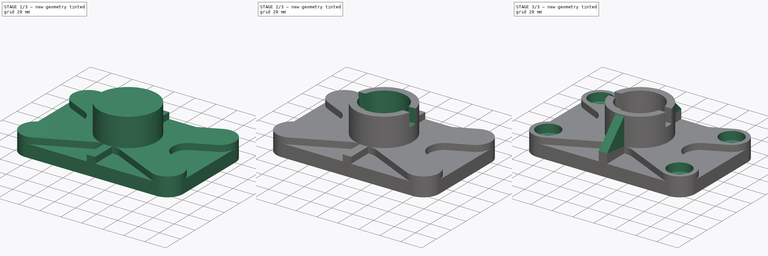
[diagram: build sequence overview — one tinted view per stage of 3, left to right]
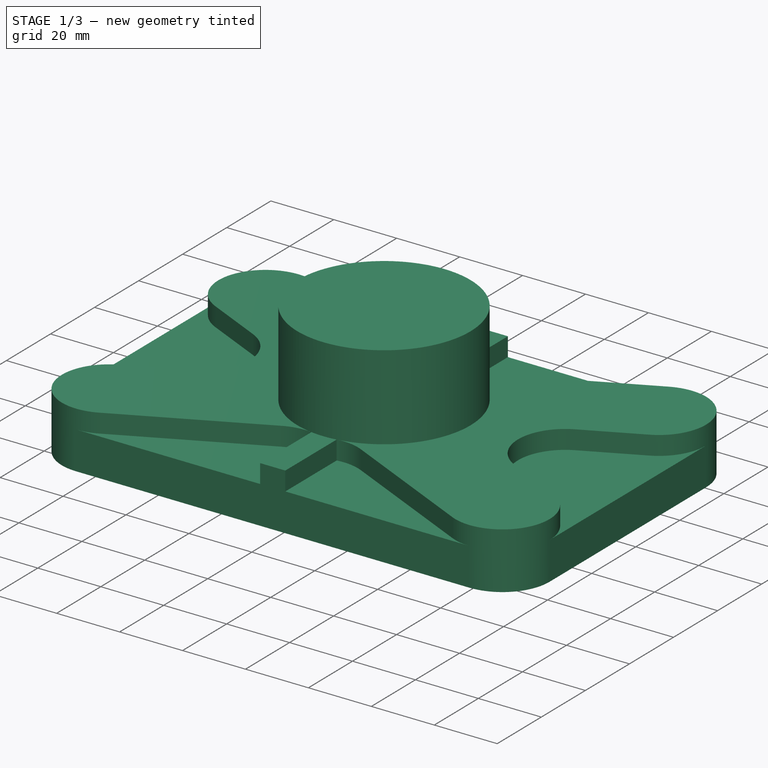
[diagram: stage 1 of 3 — iso view after this stage's code; geometry added in this stage tinted green]
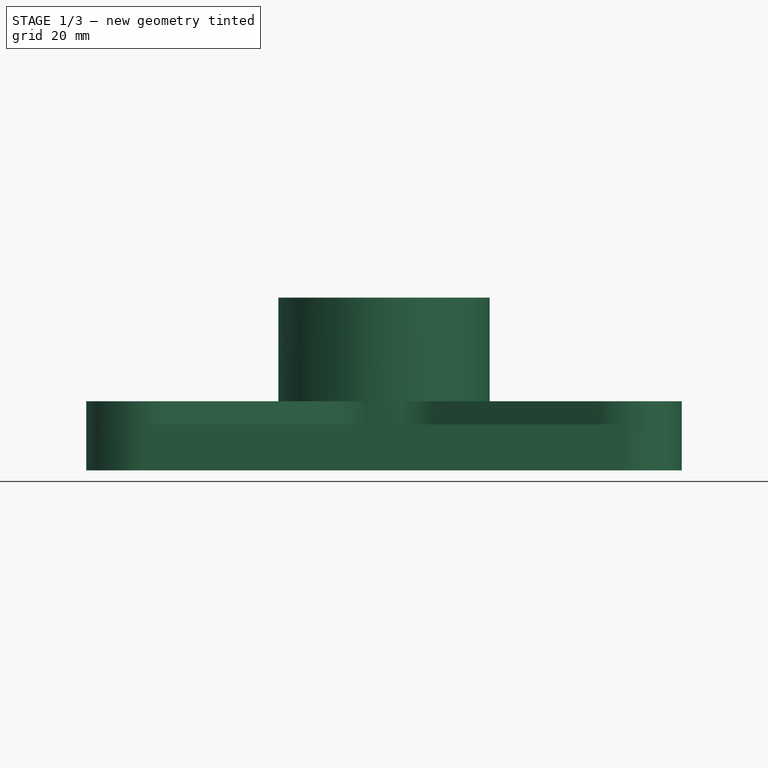
[diagram: stage 1 of 3 — front view after this stage's code; geometry added in this stage tinted green]
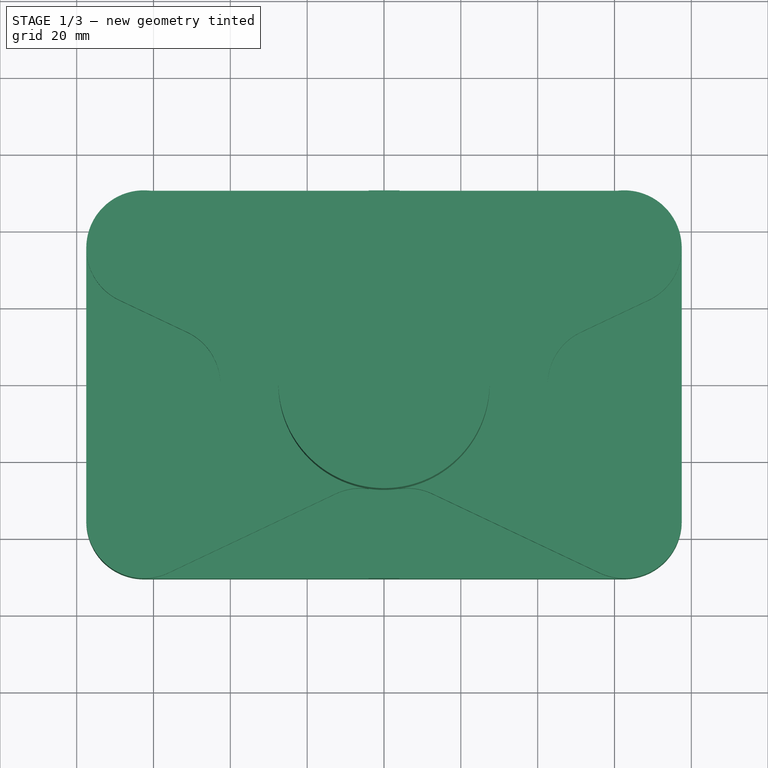
[diagram: stage 1 of 3 — top view after this stage's code; geometry added in this stage tinted green]
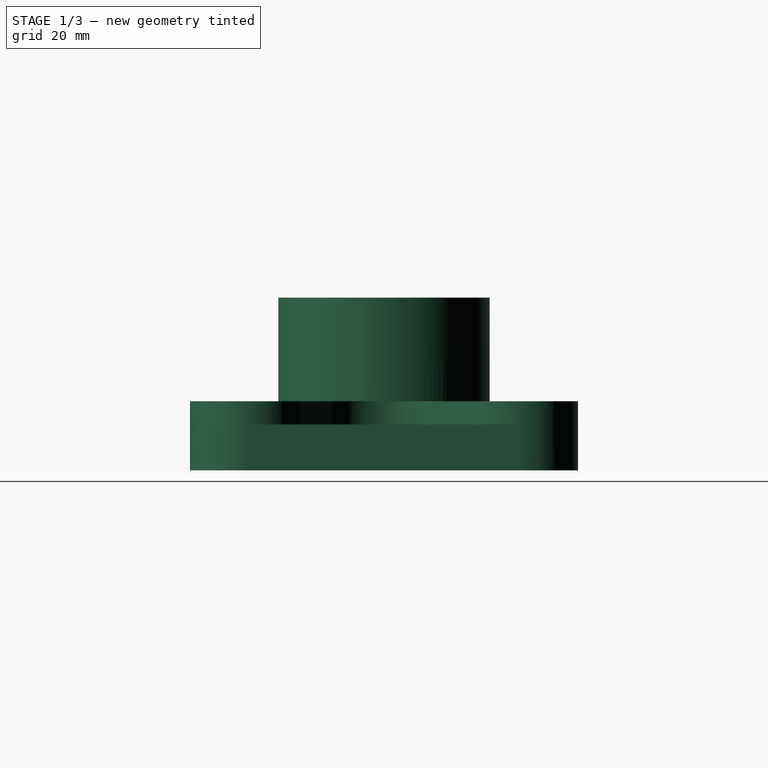
[diagram: stage 1 of 3 — right view after this stage's code; geometry added in this stage tinted green]
FCSTD DOCUMENT  (FreeCAD 1.1R42180 (Git))
Label: 24WC-02-Foot_Pad
License: Creative Commons Attribution-NonCommercial-ShareAlike 4.0
LicenseURL: https://creativecommons.org/licenses/by-nc-sa/4.0/
objects: Sketcher::SketchObject×5, PartDesign::Pad×4, PartDesign::Hole×2, App::Point×1, PartDesign::Pocket×1, App::TextDocument×1, PartDesign::Mirrored×1, PartDesign::Body×1
note: 34 computed .brp shape members not serialized (recipe doc carries the construction recipe); baked Part::Feature solids carry a one-line shape summary decoded from their .brp

FEATURE [App::Point] Origin001  label="Origine"
  Role = Origin
FEATURE [Sketcher::SketchObject] Sketch
  ArcFitTolerance = 1e-06
  AttachmentSupport = -> [Origin]
  ExternalTypes = [0]
  FullyConstrained = true
  MakeInternals = false
  MapMode = 5
  sketch-geometry (13):
    g0: LineSegment StartX=-62.5 StartY=-50.5 StartZ=0 EndX=62.5 EndY=-50.5 EndZ=0
    g1: LineSegment StartX=77.5 StartY=-35.5 StartZ=0 EndX=77.5 EndY=35.5 EndZ=0
    g2: LineSegment StartX=62.5 StartY=50.5 StartZ=0 EndX=-62.5 EndY=50.5 EndZ=0
    g3: LineSegment StartX=-77.5 StartY=35.5 StartZ=0 EndX=-77.5 EndY=-35.5 EndZ=0
    g4: GeomPoint [constr] X=0 Y=0 Z=0
    g5: ArcOfCircle CenterX=-62.5 CenterY=35.5 CenterZ=0 NormalX=0 NormalY=0 NormalZ=1 AngleXU=0 Radius=15 StartAngle=1.5708 EndAngle=3.14159
    g6: GeomPoint [constr] X=-77.5 Y=50.5 Z=0
    g7: ArcOfCircle CenterX=-62.5 CenterY=-35.5 CenterZ=0 NormalX=0 NormalY=0 NormalZ=1 AngleXU=0 Radius=15 StartAngle=3.14159 EndAngle=4.71239
    g8: GeomPoint [constr] X=-77.5 Y=-50.5 Z=0
    g9: ArcOfCircle CenterX=62.5 CenterY=-35.5 CenterZ=0 NormalX=0 NormalY=0 NormalZ=1 AngleXU=0 Radius=15 StartAngle=4.71239 EndAngle=6.28319
    g10: GeomPoint [constr] X=77.5 Y=-50.5 Z=0
    g11: ArcOfCircle CenterX=62.5 CenterY=35.5 CenterZ=0 NormalX=0 NormalY=0 NormalZ=1 AngleXU=0 Radius=15 StartAngle=-4.97e-14 EndAngle=1.5708
    g12: GeomPoint [constr] X=77.5 Y=50.5 Z=0
  constraints (28):
    c: Horizontal(g0)
    c: Horizontal(g2)
    c: Vertical(g1)
    c: Vertical(g3)
    c: Symmetric(g12,g8,g4)
    c: Distance(g10,g8) = 155
    c: Distance(g8,g6) = 101
    c: Coincident(g4,g-1)
    c: PointOnObject(g6,g2)
    c: PointOnObject(g6,g3)
    c: Tangent(g2,g5) = -1.5708
    c: Tangent(g3,g5) = -1.5708
    c: PointOnObject(g8,g3)
    c: PointOnObject(g8,g0)
    c: Tangent(g3,g7) = -1.5708
    c: Tangent(g0,g7) = -1.5708
    c: PointOnObject(g10,g0)
    c: PointOnObject(g10,g1)
    c: Tangent(g0,g9) = -1.5708
    c: Tangent(g1,g9) = -1.5708
    c: PointOnObject(g12,g1)
    c: PointOnObject(g12,g2)
    c: Tangent(g1,g11) = -1.5708
    c: Tangent(g2,g11) = -1.5708
    c: Radius(g11) = 15
    c: Equal(g11,g5)
    c: Equal(g7,g9)
    c: Equal(g9,g11)
FEATURE [PartDesign::Pad] Pad  label="Base plate"
  Direction = (0,0,1)
  Length = 12
  Length2 = 10
  Profile = -> Sketch
  ReferenceAxis = -> Sketch [N_Axis]
  Refine = true
  Reversed = true
  Suppressed = false
  Type = 0
FEATURE [Sketcher::SketchObject] Sketch002
  ArcFitTolerance = 1e-06
  ExternalTypes = [0,0,0,0,0]
  FullyConstrained = true
  MakeInternals = false
  MapMode = 5
  sketch-geometry (28):
    g0: Circle [constr] CenterX=0 CenterY=0 CenterZ=0 NormalX=0 NormalY=0 NormalZ=1 AngleXU=0 Radius=27.5
    g1: LineSegment StartX=-68.9138 StartY=21.9404 StartZ=0 EndX=-51.1957 EndY=13.5596 EndZ=0
    g2: ArcOfCircle CenterX=-57.6094 CenterY=0 CenterZ=0 NormalX=0 NormalY=0 NormalZ=1 AngleXU=0 Radius=15 StartAngle=5.15406 EndAngle=7.41216
    g3: LineSegment StartX=-51.1976 StartY=-13.5606 StartZ=0 EndX=-68.9138 EndY=-21.9404 EndZ=0
    g4: ArcOfCircle CenterX=-62.5 CenterY=-35.5 CenterZ=0 NormalX=0 NormalY=0 NormalZ=1 AngleXU=0 Radius=15 StartAngle=2.01261 EndAngle=5.15421
    g5: LineSegment StartX=-56.0862 StartY=-49.0596 StartZ=0 EndX=-12.5956 EndY=-28.4884 EndZ=0
    g6: LineSegment StartX=12.5956 StartY=-28.4884 StartZ=0 EndX=56.0862 EndY=-49.0596 EndZ=0
    g7: ArcOfCircle CenterX=62.5 CenterY=-35.5 CenterZ=0 NormalX=0 NormalY=0 NormalZ=1 AngleXU=0 Radius=15 StartAngle=4.27057 EndAngle=7.41216
    g8: LineSegment StartX=68.9138 StartY=-21.9404 StartZ=0 EndX=51.1957 EndY=-13.5596 EndZ=0
    g9: ArcOfCircle CenterX=57.6094 CenterY=0 CenterZ=0 NormalX=0 NormalY=0 NormalZ=1 AngleXU=0 Radius=15 StartAngle=2.01243 EndAngle=4.27057
    g10: LineSegment StartX=51.1982 StartY=13.5608 StartZ=0 EndX=68.9138 EndY=21.9404 EndZ=0
    g11: ArcOfCircle CenterX=62.5 CenterY=35.5 CenterZ=0 NormalX=0 NormalY=0 NormalZ=1 AngleXU=0 Radius=15 StartAngle=5.15421 EndAngle=8.2958
    g12: LineSegment StartX=56.0862 StartY=49.0596 StartZ=0 EndX=12.5956 EndY=28.4884 EndZ=0
    g13: ArcOfCircle CenterX=6.18182 CenterY=42.048 CenterZ=0 NormalX=0 NormalY=0 NormalZ=1 AngleXU=0 Radius=15 StartAngle=4.56642 EndAngle=5.15421
    g14: ArcOfCircle CenterX=-62.5 CenterY=35.5 CenterZ=0 NormalX=0 NormalY=0 NormalZ=1 AngleXU=0 Radius=15 StartAngle=1.12898 EndAngle=4.27057
    g15: LineSegment StartX=-56.0862 StartY=49.0596 StartZ=0 EndX=-12.5956 EndY=28.4884 EndZ=0
    g16: ArcOfCircle CenterX=-6.18182 CenterY=42.048 CenterZ=0 NormalX=0 NormalY=0 NormalZ=1 AngleXU=0 Radius=15 StartAngle=4.27057 EndAngle=4.85836
    g17: ArcOfCircle CenterX=-6.18182 CenterY=-42.048 CenterZ=0 NormalX=0 NormalY=0 NormalZ=1 AngleXU=0 Radius=15 StartAngle=1.42482 EndAngle=2.01261
    g18: LineSegment [constr] StartX=-62.5 StartY=-35.5 StartZ=0 EndX=62.5 EndY=35.5 EndZ=0
    g19: ArcOfCircle CenterX=6.18182 CenterY=-42.048 CenterZ=0 NormalX=0 NormalY=0 NormalZ=1 AngleXU=0 Radius=15 StartAngle=1.12898 EndAngle=1.71677
    g20: LineSegment StartX=-4 StartY=50.5 StartZ=0 EndX=-4 EndY=27.2075 EndZ=0
    g21: LineSegment [constr] StartX=-4 StartY=27.2075 StartZ=0 EndX=4 EndY=27.2075 EndZ=0
    g22: LineSegment StartX=4 StartY=27.2075 StartZ=0 EndX=4 EndY=50.5 EndZ=0
    g23: LineSegment StartX=4 StartY=50.5 StartZ=0 EndX=-4 EndY=50.5 EndZ=0
    g24: LineSegment [constr] StartX=4 StartY=-27.2075 StartZ=0 EndX=-4 EndY=-27.2075 EndZ=0
    g25: LineSegment StartX=-4 StartY=-27.2075 StartZ=0 EndX=-4 EndY=-50.5 EndZ=0
    g26: LineSegment StartX=-4 StartY=-50.5 StartZ=0 EndX=4 EndY=-50.5 EndZ=0
    g27: LineSegment StartX=4 StartY=-50.5 StartZ=0 EndX=4 EndY=-27.2075 EndZ=0
  constraints (69):
    c: Diameter(g0) = 55
    c: Coincident(g0,g-1)
    c: Tangent(g3,g4) = -1.5708
    c: Tangent(g4,g5) = -1.5708
    c: Tangent(g6,g7) = -1.5708
    c: Tangent(g7,g8) = -1.5708
    c: Tangent(g10,g11) = -1.5708
    c: Tangent(g11,g12) = -1.5708
    c: Tangent(g1,g14) = -1.5708
    c: Tangent(g14,g15) = 1.5708
    c: Coincident(g-6,g11)
    c: Coincident(g7,g-5)
    c: Coincident(g4,g-4)
    c: Coincident(g14,g-3)
    c: PointOnObject(g-4,g4)
    c: PointOnObject(g-3,g14)
    c: PointOnObject(g-6,g11)
    c: PointOnObject(g-5,g7)
    c: Equal(g9,g2)
    c: Symmetric(g2,g9,g0)
    c: Parallel(g1,g15)
    c: Parallel(g3,g5)
    c: Parallel(g6,g8)
    c: Parallel(g10,g12)
    c: Equal(g13,g9)
    c: Horizontal(g9,g2)
    c: Coincident(g18,g4)
    c: Coincident(g18,g11)
    c: Coincident(g20,g21)
    c: Coincident(g21,g22)
    c: Coincident(g22,g23)
    c: Coincident(g23,g20)
    c: Vertical(g20)
    c: Vertical(g22)
    c: Horizontal(g21)
    c: Horizontal(g23)
    c: Coincident(g21,g13)
    c: Coincident(g24,g25)
    c: Coincident(g25,g26)
    c: Coincident(g26,g27)
    c: Coincident(g27,g24)
    c: Horizontal(g24)
    c: Vertical(g25)
    c: Vertical(g27)
    c: Coincident(g24,g19)
    c: Coincident(g17,g24)
    c: DistanceX(g24,g24) = 8
    c: PointOnObject(g25,g-7)
    c: Symmetric(g26,g25,g-2)
    c: Symmetric(g22,g26,g-1)
    c: Coincident(g16,g20)
    c: Symmetric(g17,g16,g-1)
    c: Tangent(g16,g0)
    c: Tangent(g19,g0)
    c: Tangent(g17,g0) = 1.5708
    c: Tangent(g13,g0)
    c: Distance(g11,g10) = 30
    c: Radius(g16) = 15
    c: Equal(g16,g13)
    c: Equal(g17,g19)
    c: Coincident(g2,g3)
    c: Coincident(g10,g9)
    c: Coincident(g12,g13)
    c: Tangent(g1,g2) = 1.5708
    c: Tangent(g15,g16) = -1.5708
    c: Tangent(g5,g17) = 1.5708
    c: Tangent(g19,g6) = 1.5708
    c: Tangent(g12,g13,g12) = 1.5708
    c: Tangent(g9,g8) = 1.5708
FEATURE [PartDesign::Pad] Pad001  label="Cross"
  BaseFeature = -> Pad
  Direction = (0,0,1)
  Length = 6
  Length2 = 10
  Profile = -> Sketch002
  ReferenceAxis = -> Sketch002 [N_Axis]
  Refine = true
  Suppressed = false
  Type = 0
FEATURE [Sketcher::SketchObject] Sketch003
  ArcFitTolerance = 1e-06
  AttachmentSupport = -> [Pad001]
  ExternalTypes = [0]
  FullyConstrained = true
  MakeInternals = false
  MapMode = 5
  Placement = pos=(0,0,-12) rot=(1,0,0;3.14159rad)
  sketch-geometry (1):
    g0: Circle CenterX=0 CenterY=0 CenterZ=0 NormalX=0 NormalY=0 NormalZ=1 AngleXU=0 Radius=27.5
  constraints (2):
    c: Coincident(g0,g-1)
    c: Diameter(g0) = 55
FEATURE [PartDesign::Pad] Pad002
  BaseFeature = -> Pad001
  Direction = (0,0,-1)
  Length = 45
  Length2 = 10
  Profile = -> Sketch003
  ReferenceAxis = -> Sketch003 [N_Axis]
  Refine = true
  Reversed = true
  Suppressed = false
  Type = 0
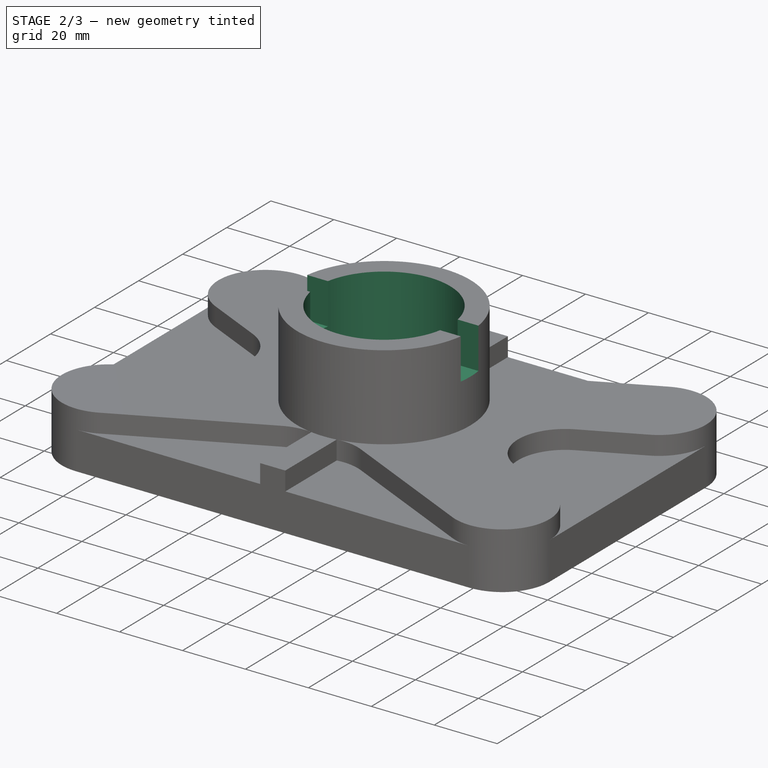
[diagram: stage 2 of 3 — iso view after this stage's code; geometry added in this stage tinted green]
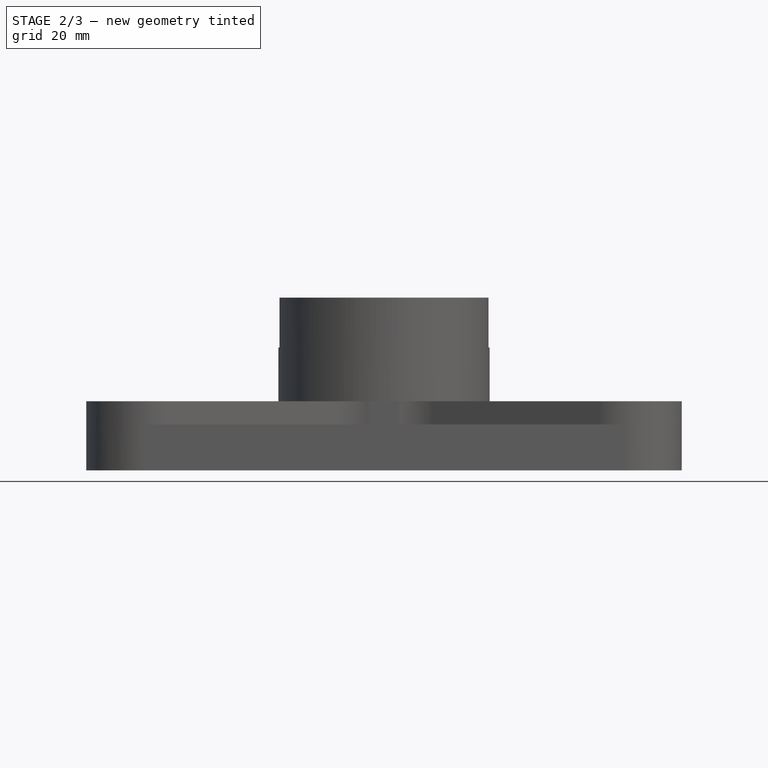
[diagram: stage 2 of 3 — front view after this stage's code; geometry added in this stage tinted green]
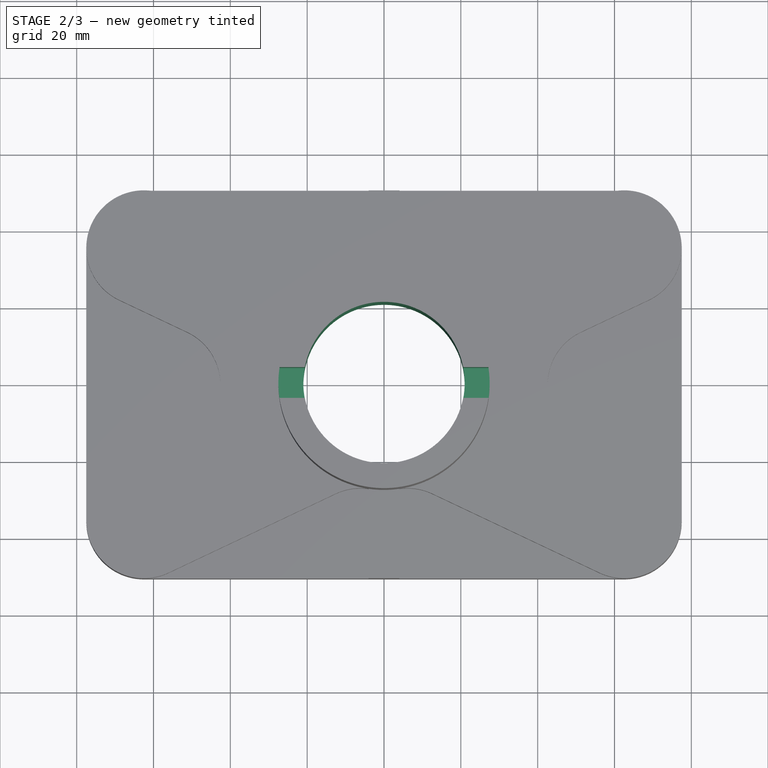
[diagram: stage 2 of 3 — top view after this stage's code; geometry added in this stage tinted green]
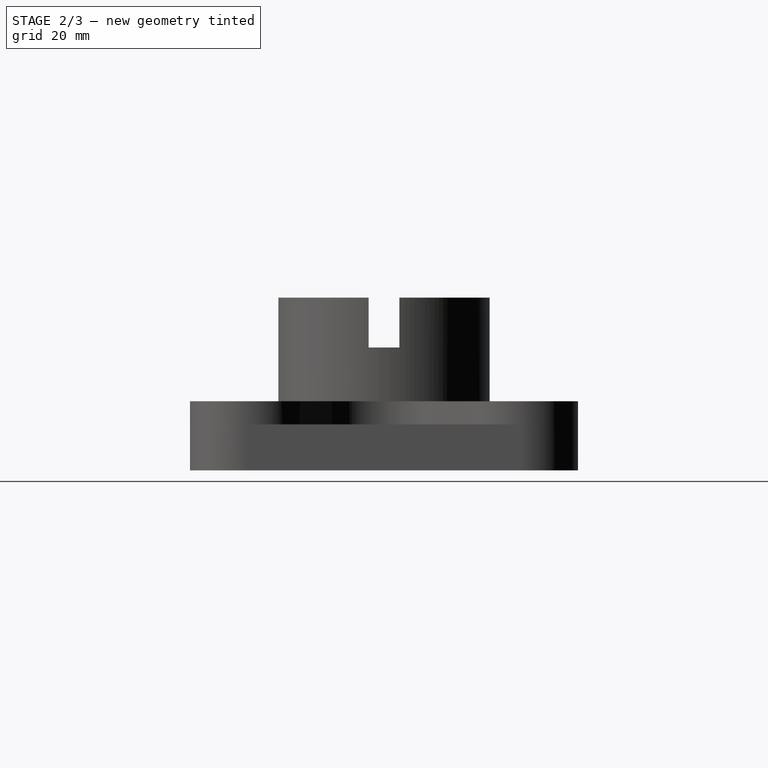
[diagram: stage 2 of 3 — right view after this stage's code; geometry added in this stage tinted green]
FEATURE [PartDesign::Hole] Hole
  BaseFeature = -> Pad002
  BaseProfileType = 7
  CustomThreadClearance = 0
  Depth = 384.602
  DepthType = 1
  Diameter = 42
  DrillForDepth = false
  DrillPoint = 1
  DrillPointAngle = 118
  HoleCutCountersinkAngle = 90
  HoleCutCustomValues = false
  HoleCutDepth = 0
  HoleCutDiameter = 0
  HoleCutType = 0
  ModelThread = false
  Profile = -> Pad002 [Face38]
  Refine = true
  Suppressed = false
  Tapered = false
  TaperedAngle = 90
  ThreadClass = 0
  ThreadDepth = 384.602
  ThreadDepthType = 0
  ThreadDiameter = 42
  ThreadDirection = 0
  ThreadFit = 0
  ThreadSize = 0
  ThreadType = 0
  Threaded = false
  UseCustomThreadClearance = false
FEATURE [Sketcher::SketchObject] Sketch004
  ArcFitTolerance = 1e-06
  AttachmentSupport = -> [Origin]
  ExternalGeometry = -> [Hole]
  ExternalTypes = [0]
  FullyConstrained = true
  MakeInternals = false
  MapMode = 5
  Placement = pos=(0,0,0) rot=(0.57735,0.57735,0.57735;2.0944rad)
  sketch-geometry (4):
    g0: LineSegment StartX=-4 StartY=33 StartZ=0 EndX=-4 EndY=20 EndZ=0
    g1: LineSegment StartX=-4 StartY=20 StartZ=0 EndX=4 EndY=20 EndZ=0
    g2: LineSegment StartX=4 StartY=20 StartZ=0 EndX=4 EndY=33 EndZ=0
    g3: LineSegment StartX=4 StartY=33 StartZ=0 EndX=-4 EndY=33 EndZ=0
  constraints (11):
    c: Coincident(g0,g1)
    c: Coincident(g1,g2)
    c: Coincident(g2,g3)
    c: Coincident(g3,g0)
    c: Vertical(g0)
    c: Vertical(g2)
    c: Horizontal(g3)
    c: Distance(g0,g2) = 8
    c: Distance(g1,g3) = 13
    c: PointOnObject(g0,g-3)
    c: Symmetric(g0,g1,g-2)
FEATURE [PartDesign::Pocket] Pocket001
  BaseFeature = -> Hole
  Direction = (-1,0,0)
  Length = 5
  Length2 = 5
  Midplane = true
  Profile = -> Sketch004
  ReferenceAxis = -> Sketch004 [N_Axis]
  Refine = true
  Suppressed = false
  Type = 1
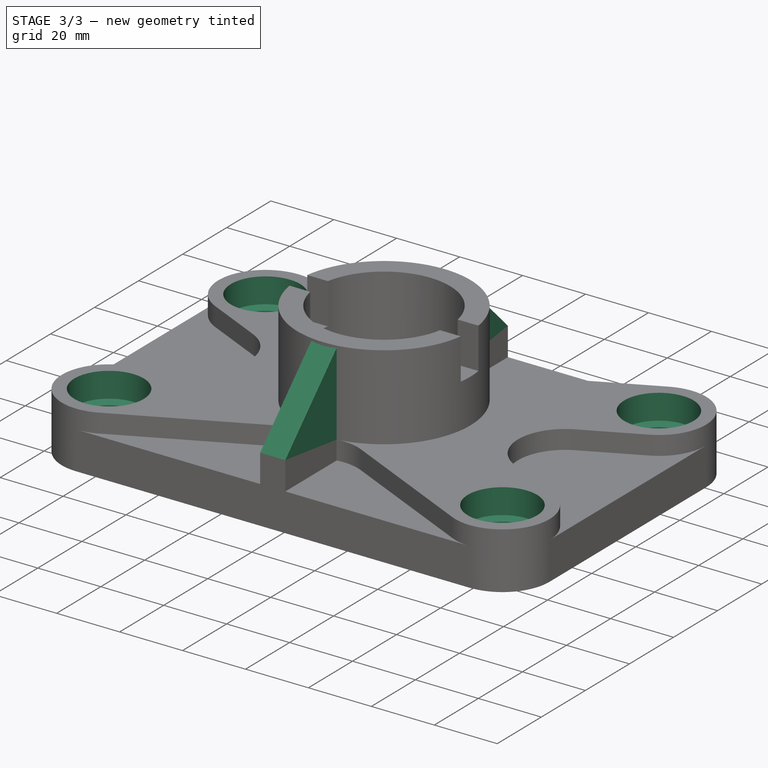
[diagram: stage 3 of 3 — iso view after this stage's code; geometry added in this stage tinted green]
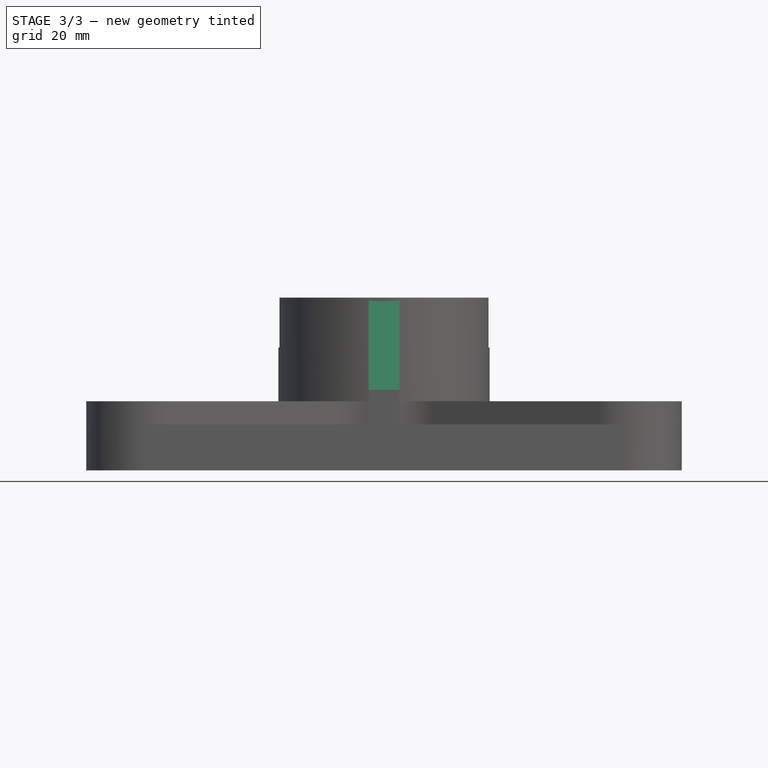
[diagram: stage 3 of 3 — front view after this stage's code; geometry added in this stage tinted green]
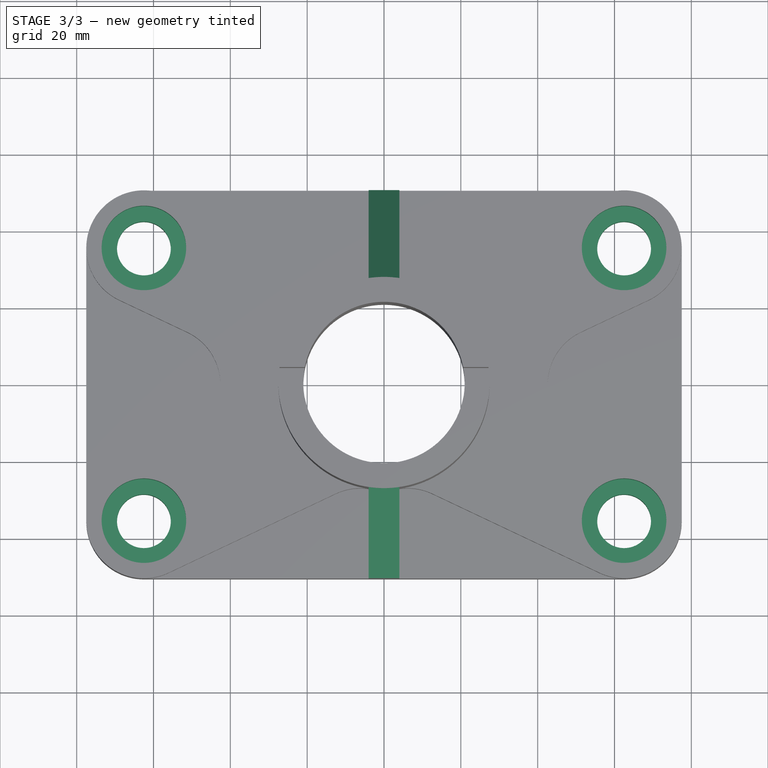
[diagram: stage 3 of 3 — top view after this stage's code; geometry added in this stage tinted green]
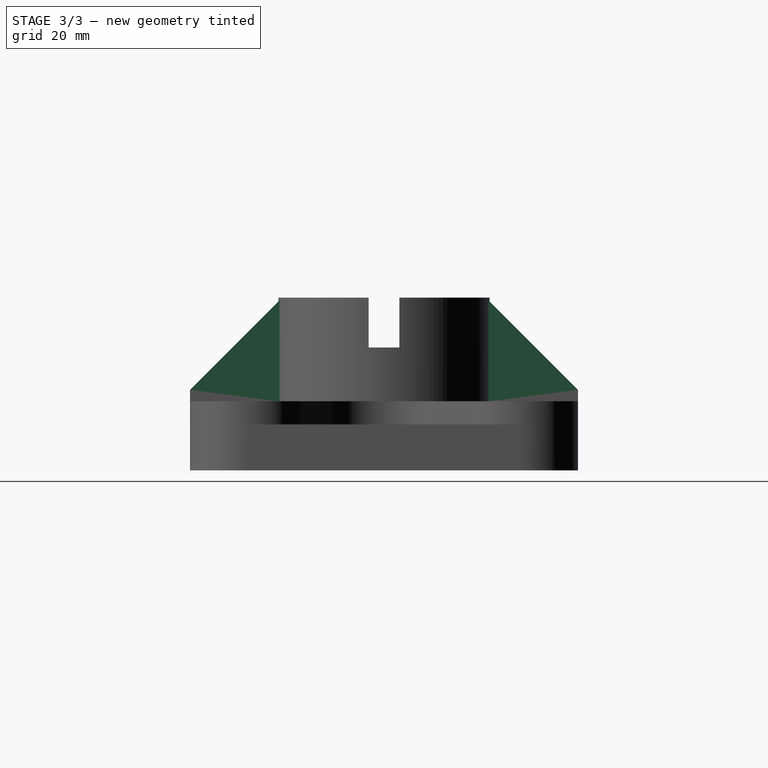
[diagram: stage 3 of 3 — right view after this stage's code; geometry added in this stage tinted green]
FEATURE [Sketcher::SketchObject] Sketch005
  ArcFitTolerance = 1e-06
  AttachmentSupport = -> [Pad001]
  ExternalGeometry = -> [Pocket001,Pad001]
  ExternalTypes = [0,0,0]
  FullyConstrained = true
  MakeInternals = false
  MapMode = 5
  Placement = pos=(4,0,0) rot=(0.57735,0.57735,0.57735;2.0944rad)
  sketch-geometry (3):
    g0: LineSegment StartX=27.2075 StartY=32.2925 StartZ=0 EndX=50.5 EndY=9 EndZ=0
    g1: LineSegment StartX=50.5 StartY=9 StartZ=0 EndX=50.5 EndY=6 EndZ=0
    g2: LineSegment StartX=27.2075 StartY=6 StartZ=0 EndX=27.2075 EndY=32.2925 EndZ=0
  constraints (8):
    c: Coincident(g0,g1)
    c: Vertical(g1)
    c: Coincident(g2,g0)
    c: Vertical(g2)
    c: DistanceY(g-3,g0) = 21
    c: Coincident(g2,g-5)
    c: Coincident(g1,g-5)
    c: Angle(g0,g-1) = 0.785398
FEATURE [App::TextDocument] Text_document  label="README"
  Text = https://www.youtube.com/watch?v=IyYxFhvBxEg\n\n7800 kg/m3\n\n1824,2g\n\nbut expected 1817, I don't see the error!
FEATURE [PartDesign::Pad] Pad003
  BaseFeature = -> Pocket001
  Direction = (1,0,0)
  Length = 8
  Length2 = 10
  Profile = -> Sketch005
  ReferenceAxis = -> Sketch005 [N_Axis]
  Refine = true
  Reversed = true
  Suppressed = false
  Type = 0
FEATURE [PartDesign::Hole] Hole001
  BaseFeature = -> Pad003
  BaseProfileType = 7
  CustomThreadClearance = 0
  Depth = 384.602
  DepthType = 1
  Diameter = 14
  DrillForDepth = false
  DrillPoint = 1
  DrillPointAngle = 118
  HoleCutCountersinkAngle = 90
  HoleCutCustomValues = false
  HoleCutDepth = 8
  HoleCutDiameter = 22
  HoleCutType = 1
  ModelThread = false
  Profile = -> Pad003 [Edge63,Edge48]
  Refine = true
  Suppressed = false
  Tapered = false
  TaperedAngle = 90
  ThreadClass = 0
  ThreadDepth = 384.602
  ThreadDepthType = 0
  ThreadDiameter = 14
  ThreadDirection = 0
  ThreadFit = 0
  ThreadSize = 0
  ThreadType = 0
  Threaded = false
  UseCustomThreadClearance = false
FEATURE [PartDesign::Mirrored] Mirrored
  BaseFeature = -> Hole001
  MirrorPlane = -> XZ_Plane
  Originals = -> [Hole001,Pad003]
  Refine = true
  Suppressed = false
  TransformMode = 0
FEATURE [PartDesign::Body] Body  label="Corps"
  AllowCompound = true
  Group = -> [Sketch,Pad,Pad001,Sketch002,Sketch003,Pad002,Hole,Sketch004,Pocket001,Sketch005,Pad003,Hole001,Mirrored]
  Origin = -> Origin
  Tip = -> Mirrored
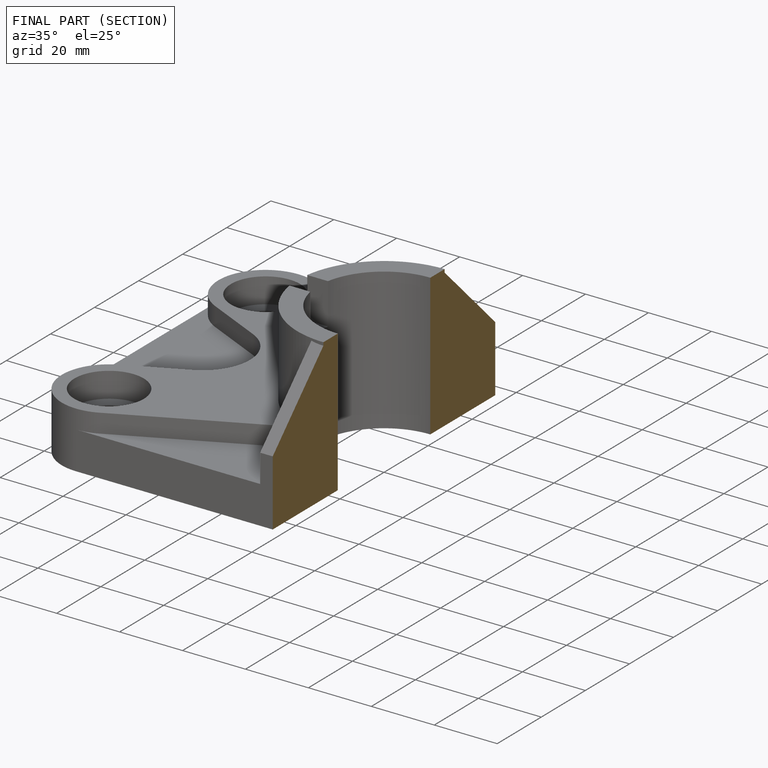
[diagram: finished part — half-section view (interior)]
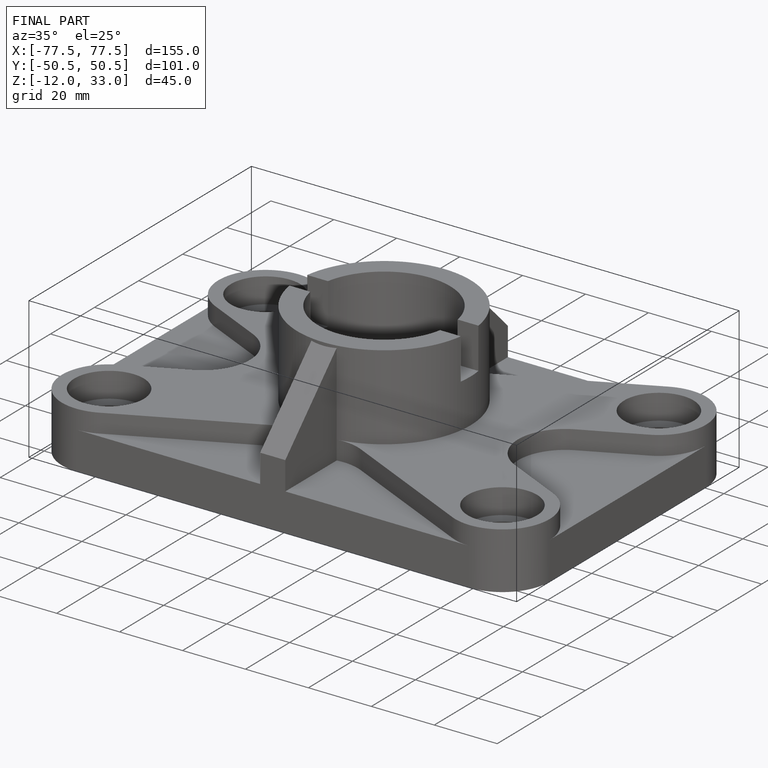
[diagram: finished part — iso view with bounding-box wireframe]
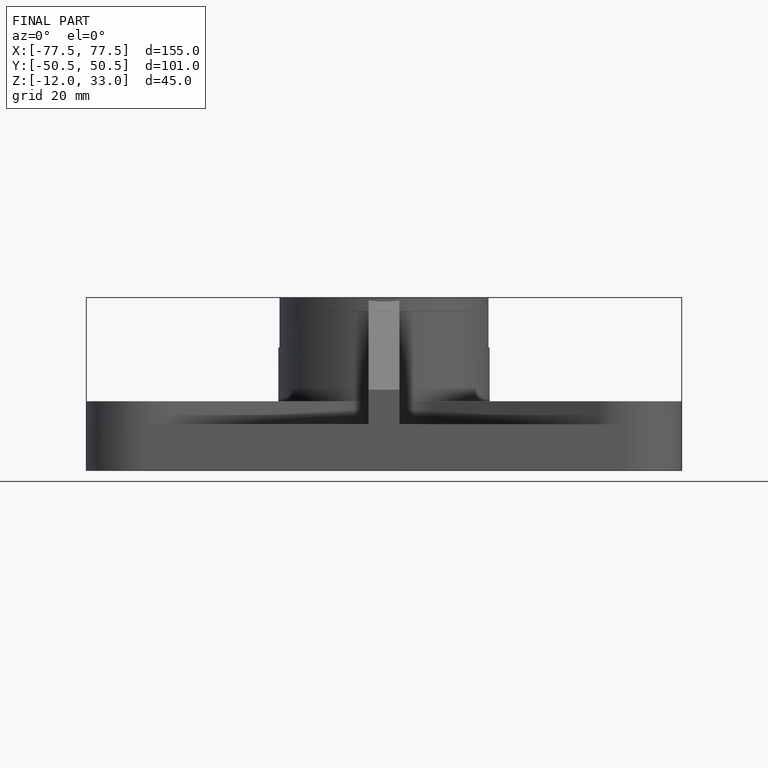
[diagram: finished part — front view with bounding-box wireframe]
